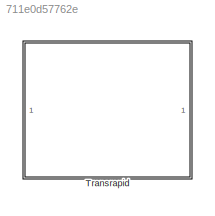
MODEL slx_711e0d57762e
KIND model
CONFIG AbsTol = auto
CONFIG EnableMultiTasking = off
CONFIG FixedStep = auto
CONFIG MaxStep = auto
CONFIG MinStep = auto
CONFIG RelTol = 1e-3
CONFIG SampleTimeConstraint = Unconstrained
CONFIG SolverName = VariableStepAuto
CONFIG StartTime = 0.0
CONFIG StopTime = 10.0
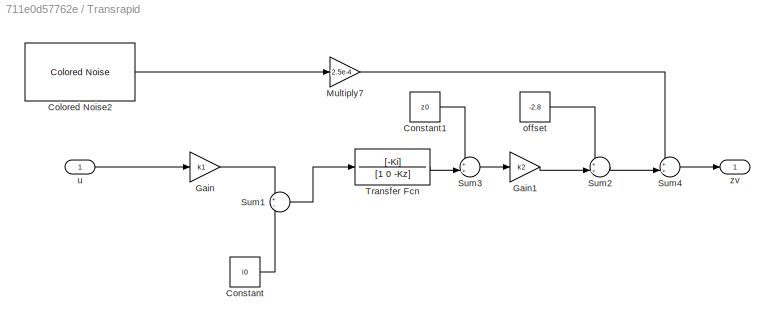
BLOCK [SubSystem] Transrapid
BLOCK [Reference] Transrapid/Colored Noise2  REF=dspsrcs4/Colored Noise
  SourceBlock = dspsrcs4/Colored Noise
  SourceType = dsp.simulink.ColoredNoise
BLOCK [Constant] Transrapid/Constant
  Value = i0
BLOCK [Constant] Transrapid/Constant1
  Value = z0
BLOCK [Gain] Transrapid/Gain
  Gain = k1
BLOCK [Gain] Transrapid/Gain1
  Gain = k2
BLOCK [Gain] Transrapid/Multiply7
  Gain = 2.5e-4
BLOCK [Sum] Transrapid/Sum1
  Inputs = +-
  NameLocation = top
BLOCK [Sum] Transrapid/Sum2
  Inputs = ++|
BLOCK [Sum] Transrapid/Sum3
  Inputs = ++|
BLOCK [Sum] Transrapid/Sum4
  Inputs = ++|
BLOCK [TransferFcn] Transrapid/Transfer Fcn
  Denominator = [1 0 -Kz]
  Numerator = [-Ki]
BLOCK [Constant] Transrapid/offset
  Value = -2.8
BLOCK [Inport] Transrapid/u
BLOCK [Outport] Transrapid/zv
LINE Transrapid/Colored Noise2:1 -> Transrapid/Multiply7:1
LINE Transrapid/Constant1:1 -> Transrapid/Sum3:1
LINE Transrapid/Constant:1 -> Transrapid/Sum1:2
LINE Transrapid/Gain1:1 -> Transrapid/Sum2:2
LINE Transrapid/Gain:1 -> Transrapid/Sum1:1
LINE Transrapid/Multiply7:1 -> Transrapid/Sum4:1
LINE Transrapid/Sum1:1 -> Transrapid/Transfer Fcn:1
LINE Transrapid/Sum2:1 -> Transrapid/Sum4:2
LINE Transrapid/Sum3:1 -> Transrapid/Gain1:1
LINE Transrapid/Sum4:1 -> Transrapid/zv:1
LINE Transrapid/Transfer Fcn:1 -> Transrapid/Sum3:2
LINE Transrapid/offset:1 -> Transrapid/Sum2:1
LINE Transrapid/u:1 -> Transrapid/Gain:1
